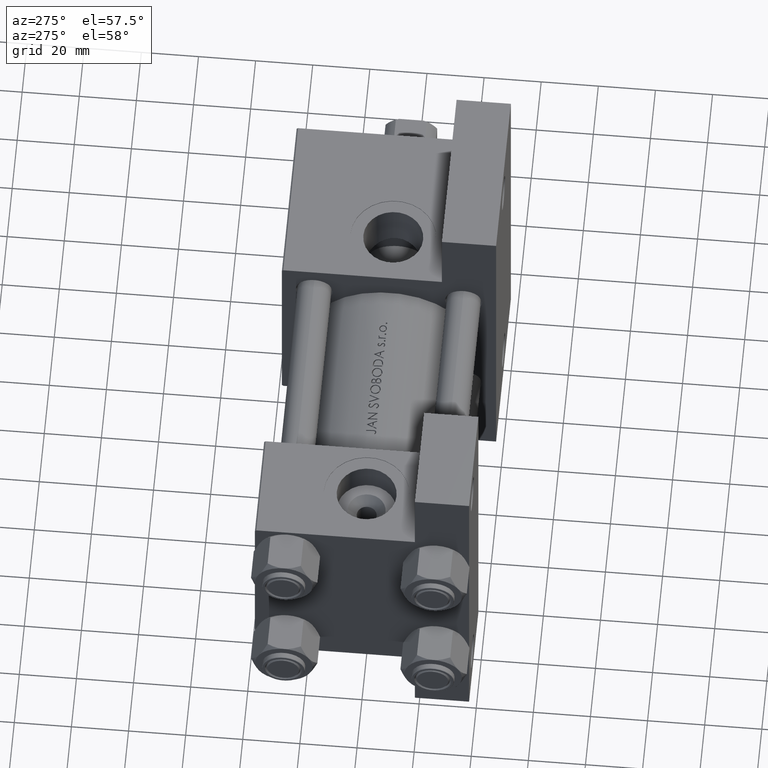
[diagram: clean part render]
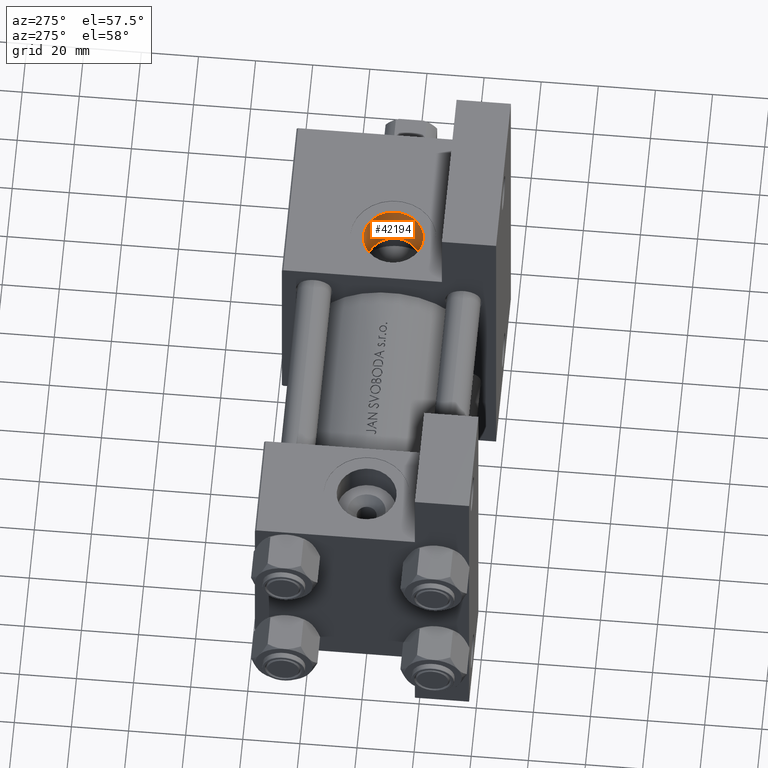
[diagram: same view with one face highlighted and labeled with its STEP entity id]
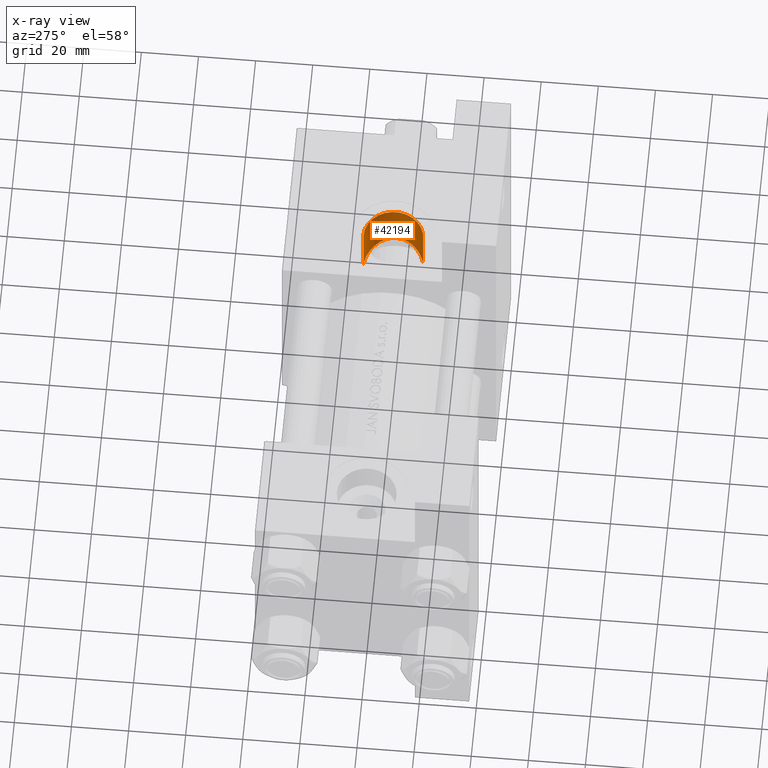
[diagram: x-ray of the same camera — body ghosted, the highlighted face saturated]
A machine part, auxiliary view. The second image highlights one B-rep face of the part: STEP entity #42194.
The next image is the same camera in x-ray: the body ghosted, the highlighted face saturated — about 0% of this face is hidden behind the body in this view.
In plain terms, the highlighted cylindrical surface (edge-blend (fillet) strip) has radius 10.48 mm, axis along (-0, -0, 1).
Its self-contained STEP definition (entity closure, byte-faithful):
#1248 = CARTESIAN_POINT ( 'NONE',  ( 126.7410054315662933, -17.39963274831549711, 10.34017078318250427 ) ) ;
#1780 = CARTESIAN_POINT ( 'NONE',  ( 124.9999999999999858, 37.50100000000000477, -10.47999999999998977 ) ) ;
#2163 = CARTESIAN_POINT ( 'NONE',  ( 134.0415136392023783, -19.66186875787548871, 5.310054482731737302 ) ) ;
#2406 = CARTESIAN_POINT ( 'NONE',  ( 135.4669051482524651, -20.50255402113293712, -0.6300211231001426881 ) ) ;
#3137 = CARTESIAN_POINT ( 'NONE',  ( 126.7534701870719260, -17.98521153983802989, -10.33810977386608521 ) ) ;
#3166 = VERTEX_POINT ( 'NONE', #9500 ) ;
#3171 = ORIENTED_EDGE ( 'NONE', *, *, #24024, .T. ) ;
#4117 = CARTESIAN_POINT ( 'NONE',  ( 134.0783182432221849, -19.94519646484592812, -5.247152792081112516 ) ) ;
#4974 = CARTESIAN_POINT ( 'NONE',  ( 125.0000000000000000, -17.90669148670407651, -10.47999999999999510 ) ) ;
#4999 = CARTESIAN_POINT ( 'NONE',  ( 124.9999999999999858, -17.31154528053460240, 10.48000000000000576 ) ) ;
#5139 = CYLINDRICAL_SURFACE ( 'NONE', #20467, 10.48000000000000043 ) ;
#5237 = CARTESIAN_POINT ( 'NONE',  ( 133.8632463434475710, -19.57285682509593272, 5.602446212762904665 ) ) ;
#5625 = DIRECTION ( 'NONE',  ( -0.000000000000000000, -1.000000000000000000, -8.673617379884036705E-17 ) ) ;
#6156 = CARTESIAN_POINT ( 'NONE',  ( 135.4776551375226745, -20.48265569949338172, 0.4117595292702607157 ) ) ;
#6875 = CARTESIAN_POINT ( 'NONE',  ( 133.9026386617617845, -19.87300753805846298, -5.539771893847124318 ) ) ;
#7128 = CARTESIAN_POINT ( 'NONE',  ( 132.8913372837819225, -19.47582360453931116, -6.904560610471916604 ) ) ;
#9455 = CARTESIAN_POINT ( 'NONE',  ( 124.9999999999999858, -17.31154528053460240, 10.48000000000000576 ) ) ;
#9500 = CARTESIAN_POINT ( 'NONE',  ( 124.9999999999999858, -37.29999999999999716, -10.47999999999999687 ) ) ;
#9888 = CARTESIAN_POINT ( 'NONE',  ( 135.3852102648228026, -20.41012014665353291, 1.448585321858011810 ) ) ;
#10376 = CARTESIAN_POINT ( 'NONE',  ( 129.6848851208463316, -17.95378683072777548, 9.399761861338292945 ) ) ;
#11345 = CARTESIAN_POINT ( 'NONE',  ( 131.9416544847751425, -19.13207627753017093, -7.880695095096324820 ) ) ;
#11589 = CARTESIAN_POINT ( 'NONE',  ( 133.5247630629396838, -19.72096722719661699, -6.105281524917114844 ) ) ;
#11845 = CARTESIAN_POINT ( 'NONE',  ( 130.2983228447828310, -18.62849765410346592, -9.067371222007597709 ) ) ;
#12513 = ORIENTED_EDGE ( 'NONE', *, *, #18174, .T. ) ;
#12604 = CARTESIAN_POINT ( 'NONE',  ( 124.9999999999999858, 37.50100000000000477, 9.974746723040443104E-15 ) ) ;
#12702 = CARTESIAN_POINT ( 'NONE',  ( 134.5136165929028209, -19.90621515629138472, 4.408684660160872681 ) ) ;
#12839 = EDGE_CURVE ( 'NONE', #46533, #3166, #47102, .T. ) ;
#12992 = DIRECTION ( 'NONE',  ( -0.000000000000000000, -1.000000000000000000, -8.673617379884036705E-17 ) ) ;
#13615 = CARTESIAN_POINT ( 'NONE',  ( 135.1175830810125547, -20.24111318549746841, 2.820020607438594507 ) ) ;
#14182 = VECTOR ( 'NONE', #12992, 1000.000000000000000 ) ;
#14842 = CARTESIAN_POINT ( 'NONE',  ( 125.3524141148301396, -17.90669148670408362, -10.47999999999999510 ) ) ;
#15089 = CARTESIAN_POINT ( 'NONE',  ( 135.1488622720014803, -20.39261420473474118, -2.705221023230749644 ) ) ;
#16444 = CARTESIAN_POINT ( 'NONE',  ( 130.2787600379286062, -18.12953982762253347, 9.078379935655652488 ) ) ;
#16594 = FACE_OUTER_BOUND ( 'NONE', #48238, .T. ) ;
#16620 = DIRECTION ( 'NONE',  ( 0.000000000000000000, -1.000000000000000000, -8.673617379884036705E-17 ) ) ;
#17598 = CARTESIAN_POINT ( 'NONE',  ( 135.4015008588858393, -20.48626732390680161, -1.327331865308744696 ) ) ;
#18174 = EDGE_CURVE ( 'NONE', #21298, #46533, #30720, .T. ) ;
#18326 = CARTESIAN_POINT ( 'NONE',  ( 129.6885837709134819, -18.47081169218748542, -9.397559365377055940 ) ) ;
#18574 = CARTESIAN_POINT ( 'NONE',  ( 134.4025389929008725, -20.07976061505709708, -4.641199740976983179 ) ) ;
#19509 = LINE ( 'NONE', #19765, #27410 ) ;
#19533 = ORIENTED_EDGE ( 'NONE', *, *, #12839, .T. ) ;
#19765 = CARTESIAN_POINT ( 'NONE',  ( 124.9999999999999858, 37.50100000000000477, 10.48000000000000931 ) ) ;
#20179 = CARTESIAN_POINT ( 'NONE',  ( 125.6954312938288751, -17.32248566803109568, 10.46281023584332814 ) ) ;
#20316 = DIRECTION ( 'NONE',  ( 0.000000000000000000, 0.000000000000000000, -1.000000000000000000 ) ) ;
#20467 = AXIS2_PLACEMENT_3D ( 'NONE', #12604, #5625, #20316 ) ;
#20619 = CARTESIAN_POINT ( 'NONE',  ( 124.9999999999999858, -37.29999999999999716, 10.48000000000000398 ) ) ;
#21298 = VERTEX_POINT ( 'NONE', #9455 ) ;
#21337 = CARTESIAN_POINT ( 'NONE',  ( 135.4819445000525775, -20.50178181377810560, -0.2822101851752840118 ) ) ;
#22073 = CARTESIAN_POINT ( 'NONE',  ( 132.6611621740133273, -19.38999619374664007, -7.159076384942097526 ) ) ;
#22323 = CARTESIAN_POINT ( 'NONE',  ( 133.3225662003738137, -19.64111042044597966, -6.378170050295211446 ) ) ;
#24024 = EDGE_CURVE ( 'NONE', #3166, #41884, #34351, .T. ) ;
#25580 = CARTESIAN_POINT ( 'NONE',  ( 131.9208345979153876, -18.70786800614510526, 7.898040897294866802 ) ) ;
#27235 = ORIENTED_EDGE ( 'NONE', *, *, #34639, .F. ) ;
#27410 = VECTOR ( 'NONE', #46149, 1000.000000000000000 ) ;
#28809 = CARTESIAN_POINT ( 'NONE',  ( 125.3470210746792333, -17.31154528053460595, 10.48000000000000753 ) ) ;
#30521 = CARTESIAN_POINT ( 'NONE',  ( 125.7047145583875221, -17.91665127801143598, -10.46219065497900935 ) ) ;
#30720 = B_SPLINE_CURVE_WITH_KNOTS ( 'NONE', 3,
 ( #4999, #28809, #20179, #35362, #1248, #36764, #46811, #10376, #16444, #39348, #25580, #36526, #31638, #5237, #2163, #32545, #12702, #47725, #13615, #43987, #9888, #40264, #6156, #21337, #2406, #17598, #37254, #15089, #48702, #40990, #18574, #4117, #6875, #11589, #22323, #7128, #22073, #11345, #37501, #11845, #18326, #33999, #45952, #3137, #37989, #30521, #14842, #48948 ),
 .UNSPECIFIED., .F., .F.,
 ( 4, 2, 2, 2, 2, 2, 2, 2, 2, 2, 2, 2, 2, 2, 2, 2, 2, 2, 2, 2, 2, 2, 2, 4 ),
 ( 0.03337172289375581885, 0.03441233523662733801, 0.03545294757949885717, 0.03753417226524188854, 0.03961539695098492686, 0.04169662163672796518, 0.04377784632247100349, 0.04481845866534252265, 0.04585907100821403487, 0.04794029569395706625, 0.04898090803682858541, 0.05002152037970010456, 0.05106213272257161678, 0.05210274506544312900, 0.05418396975118616732, 0.05522458209405765872, 0.05626519443692916400, 0.05730580677980066234, 0.05834641912267216068, 0.06042764380841510186, 0.06250886849415804303, 0.06459009317990098420, 0.06563070552277250336, 0.06667131786564400864 ),
 .UNSPECIFIED. ) ;
#31557 = CARTESIAN_POINT ( 'NONE',  ( 124.9999999999999858, -37.29999999999999716, 3.486794186713383443E-15 ) ) ;
#31638 = CARTESIAN_POINT ( 'NONE',  ( 133.2943842801270478, -19.29805340160767102, 6.441284550439736911 ) ) ;
#32545 = CARTESIAN_POINT ( 'NONE',  ( 134.3662177968320179, -19.82832408839749405, 4.713768309937356626 ) ) ;
#33999 = CARTESIAN_POINT ( 'NONE',  ( 128.4291236246859569, -18.20648317701849805, -9.926633415679273043 ) ) ;
#34351 = CIRCLE ( 'NONE', #42296, 10.48000000000000043 ) ;
#34639 = EDGE_CURVE ( 'NONE', #21298, #41884, #19509, .T. ) ;
#35289 = DIRECTION ( 'NONE',  ( 0.000000000000000000, 0.000000000000000000, -1.000000000000000000 ) ) ;
#35362 = CARTESIAN_POINT ( 'NONE',  ( 126.3951252308202555, -17.36667489365844474, 10.39267281819421385 ) ) ;
#36526 = CARTESIAN_POINT ( 'NONE',  ( 132.8679744497729018, -19.10325731143032257, 6.954996736502861765 ) ) ;
#36764 = CARTESIAN_POINT ( 'NONE',  ( 127.7588417203788254, -17.52693762274574141, 10.13402779325158676 ) ) ;
#37254 = CARTESIAN_POINT ( 'NONE',  ( 135.3507038963579134, -20.46901633175582802, -1.677836523642069588 ) ) ;
#37501 = CARTESIAN_POINT ( 'NONE',  ( 131.4217440813015401, -18.95863385658994460, -8.309672003124303430 ) ) ;
#37989 = CARTESIAN_POINT ( 'NONE',  ( 126.4044395936603848, -17.95581939429250085, -10.39141979412305261 ) ) ;
#39348 = CARTESIAN_POINT ( 'NONE',  ( 131.3953719826939448, -18.50579674927558571, 8.329556230503525782 ) ) ;
#40264 = CARTESIAN_POINT ( 'NONE',  ( 135.4583245133797220, -20.46430137750836309, 0.7579182357777649592 ) ) ;
#40990 = CARTESIAN_POINT ( 'NONE',  ( 134.5516556862485231, -20.14238090880650134, -4.326202217588873467 ) ) ;
#41884 = VERTEX_POINT ( 'NONE', #20619 ) ;
#42194 = ADVANCED_FACE ( 'NONE', ( #16594 ), #5139, .F. ) ;
#42296 = AXIS2_PLACEMENT_3D ( 'NONE', #31557, #16620, #35289 ) ;
#43987 = CARTESIAN_POINT ( 'NONE',  ( 135.3311065042815073, -20.37409322011633250, 1.794586109409267660 ) ) ;
#45952 = CARTESIAN_POINT ( 'NONE',  ( 127.7750123670570446, -18.09812027575557281, -10.12979723076934491 ) ) ;
#46149 = DIRECTION ( 'NONE',  ( -0.000000000000000000, -1.000000000000000000, -8.673617379884036705E-17 ) ) ;
#46533 = VERTEX_POINT ( 'NONE', #4974 ) ;
#46811 = CARTESIAN_POINT ( 'NONE',  ( 128.4159050215025673, -17.65012615064441448, 9.931528811289384251 ) ) ;
#47102 = LINE ( 'NONE', #1780, #14182 ) ;
#47725 = CARTESIAN_POINT ( 'NONE',  ( 134.9112922687107812, -20.12166452589492138, 3.472274471029919152 ) ) ;
#48238 = EDGE_LOOP ( 'NONE', ( #27235, #12513, #19533, #3171 ) ) ;
#48702 = CARTESIAN_POINT ( 'NONE',  ( 134.9485359727864022, -20.30891902702525798, -3.366903607565226331 ) ) ;
#48948 = CARTESIAN_POINT ( 'NONE',  ( 125.0000000000000000, -17.90669148670407651, -10.47999999999999510 ) ) ;